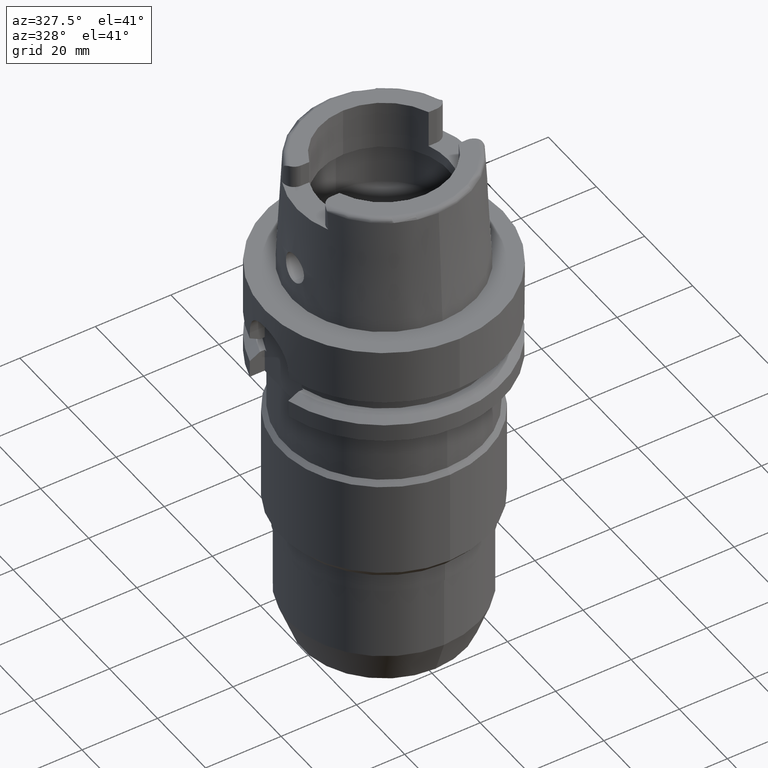
[diagram: clean part render]
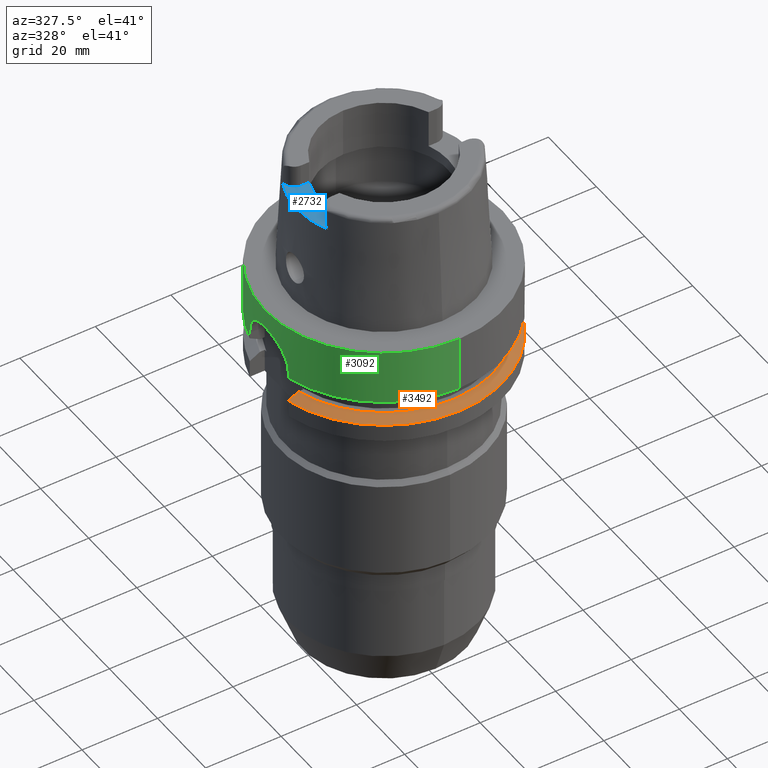
[diagram: same view with three faces highlighted in distinct colors, each labeled with its STEP entity id]
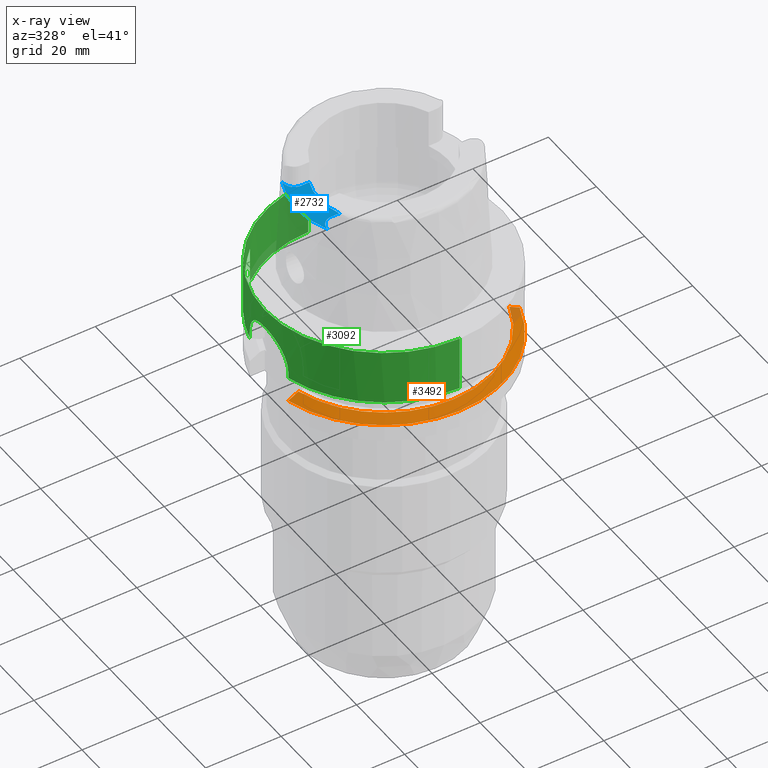
[diagram: x-ray of the same camera — body ghosted, the three highlighted faces saturated]
A machine part, auxiliary view with three faces highlighted in distinct colors.
The next image is the same camera in x-ray (body ghosted, the three faces saturated) — at least one of them is partly hidden behind the body in this view.
Their STEP definitions:

[orange] entity #3492 — the highlighted conical surface has half-angle 60 deg.
#1166=CARTESIAN_POINT('',(3.018691773962E1,-8.999999854524E0,
-2.137749790141E1));
#1167=CARTESIAN_POINT('',(2.988425156085E1,-8.999999854524E0,
-2.121003774786E1));
#1168=CARTESIAN_POINT('',(2.927875700457E1,-8.999999970882E0,
-2.087540607537E1));
#1169=CARTESIAN_POINT('',(2.836989125431E1,-9.000000320128E0,
-2.037459664159E1));
#1170=CARTESIAN_POINT('',(2.776361428914E1,-8.999999272447E0,
-2.004137408700E1));
#1171=CARTESIAN_POINT('',(2.746036354001E1,-8.999999272447E0,-1.9875E1));
#1204=CARTESIAN_POINT('',(-2.776816319676E1,-8.000000146436E0,-1.9875E1));
#1205=CARTESIAN_POINT('',(-2.806829964999E1,-8.000000146436E0,
-2.004151125758E1));
#1206=CARTESIAN_POINT('',(-2.866838177582E1,-7.999999994968E0,
-2.037486182336E1));
#1207=CARTESIAN_POINT('',(-2.956806989478E1,-7.999999797959E0,
-2.087567804800E1));
#1208=CARTESIAN_POINT('',(-3.016752195719E1,-8.000000474785E0,
-2.121015964334E1));
#1209=CARTESIAN_POINT('',(-3.046719534850E1,-8.000000474785E0,
-2.137750338496E1));
#1244=CARTESIAN_POINT('',(0.E0,0.E0,-1.9875E1));
#1245=DIRECTION('',(0.E0,0.E0,-1.E0));
#1246=DIRECTION('',(9.502643111725E-1,-3.114446000686E-1,0.E0));
#1247=AXIS2_PLACEMENT_3D('',#1244,#1245,#1246);
#1252=CARTESIAN_POINT('',(0.E0,0.E0,-1.9875E1));
#1253=DIRECTION('',(0.E0,0.E0,-1.E0));
#1254=DIRECTION('',(0.E0,-1.E0,0.E0));
#1255=AXIS2_PLACEMENT_3D('',#1252,#1253,#1254);
#1274=CARTESIAN_POINT('',(0.E0,0.E0,-2.137749907476E1));
#1275=DIRECTION('',(0.E0,0.E0,-1.E0));
#1276=DIRECTION('',(9.583148474999E-1,-2.857142857143E-1,0.E0));
#1277=AXIS2_PLACEMENT_3D('',#1274,#1275,#1276);
#1282=CARTESIAN_POINT('',(0.E0,0.E0,-2.137749907476E1));
#1283=DIRECTION('',(0.E0,0.E0,-1.E0));
#1284=DIRECTION('',(0.E0,-1.E0,0.E0));
#1285=AXIS2_PLACEMENT_3D('',#1282,#1283,#1284);
#2566=CARTESIAN_POINT('',(-3.046719534850E1,-8.000000474785E0,
-2.137750338496E1));
#2567=VERTEX_POINT('',#2566);
#2568=CARTESIAN_POINT('',(3.018691769625E1,-9.E0,-2.137749907476E1));
#2569=CARTESIAN_POINT('',(0.E0,-3.15E1,-2.137749907476E1));
#2570=VERTEX_POINT('',#2568);
#2571=VERTEX_POINT('',#2569);
#2582=CARTESIAN_POINT('',(-2.776816319676E1,-8.000000146436E0,-1.9875E1));
#2583=VERTEX_POINT('',#2582);
#2616=CARTESIAN_POINT('',(-1.071896190413E-14,-2.889759526419E1,-1.9875E1));
#2617=VERTEX_POINT('',#2616);
#2618=CARTESIAN_POINT('',(2.746035345827E1,-9.E0,-1.9875E1));
#2619=VERTEX_POINT('',#2618);
#3479=CARTESIAN_POINT('',(0.E0,0.E0,-2.062624953738E1));
#3480=DIRECTION('',(0.E0,0.E0,-1.E0));
#3481=DIRECTION('',(0.E0,-1.E0,0.E0));
#3482=AXIS2_PLACEMENT_3D('',#3479,#3480,#3481);
#3483=CONICAL_SURFACE('',#3482,3.019879763210E1,6.E1);
#3484=ORIENTED_EDGE('',*,*,#3439,.F.);
#3485=ORIENTED_EDGE('',*,*,#3459,.F.);
#3486=ORIENTED_EDGE('',*,*,#3457,.F.);
#3487=ORIENTED_EDGE('',*,*,#3405,.F.);
#3488=ORIENTED_EDGE('',*,*,#3422,.T.);
#3489=ORIENTED_EDGE('',*,*,#3420,.T.);
#3490=EDGE_LOOP('',(#3484,#3485,#3486,#3487,#3488,#3489));
#3491=FACE_OUTER_BOUND('',#3490,.F.);
#1172=B_SPLINE_CURVE_WITH_KNOTS('',3,(#1166,#1167,#1168,#1169,#1170,#1171),
.UNSPECIFIED.,.F.,.F.,(4,1,1,4),(0.E0,3.333333333333E-1,6.666666666667E-1,1.E0),
.UNSPECIFIED.);
#1210=B_SPLINE_CURVE_WITH_KNOTS('',3,(#1204,#1205,#1206,#1207,#1208,#1209),
.UNSPECIFIED.,.F.,.F.,(4,1,1,4),(0.E0,3.333333333333E-1,6.666666666667E-1,1.E0),
.UNSPECIFIED.);
#1248=CIRCLE('',#1247,2.889759526419E1);
#1256=CIRCLE('',#1255,2.889759526419E1);
#1278=CIRCLE('',#1277,3.15E1);
#1286=CIRCLE('',#1285,3.15E1);
#3405=EDGE_CURVE('',#2570,#2619,#1172,.T.);
#3420=EDGE_CURVE('',#2571,#2567,#1286,.T.);
#3422=EDGE_CURVE('',#2570,#2571,#1278,.T.);
#3439=EDGE_CURVE('',#2583,#2567,#1210,.T.);
#3457=EDGE_CURVE('',#2619,#2617,#1248,.T.);
#3459=EDGE_CURVE('',#2617,#2583,#1256,.T.);
#3492=ADVANCED_FACE('',(#3491),#3483,.T.);

[blue] entity #2732 — the highlighted planar face has unit normal (0, 0, 1).
#39=CARTESIAN_POINT('',(0.E0,0.E0,2.6E1));
#40=DIRECTION('',(0.E0,0.E0,1.E0));
#41=DIRECTION('',(-9.294994374136E-1,3.688235294118E-1,0.E0));
#42=AXIS2_PLACEMENT_3D('',#39,#40,#41);
#47=DIRECTION('',(-1.E0,8.644330667353E-14,0.E0));
#48=VECTOR('',#47,2.188509563969E0);
#49=CARTESIAN_POINT('',(-1.580149043603E1,-6.27E0,2.6E1));
#50=LINE('',#49,#48);
#54=CARTESIAN_POINT('',(-1.799E1,-9.15E0,2.6E1));
#55=DIRECTION('',(0.E0,0.E0,1.E0));
#56=DIRECTION('',(0.E0,1.E0,0.E0));
#57=AXIS2_PLACEMENT_3D('',#54,#55,#56);
#62=DIRECTION('',(1.239819362355E-6,-9.999999999992E-1,-3.860130687331E-14));
#63=VECTOR('',#62,5.522165905616E-1);
#64=CARTESIAN_POINT('',(-2.087E1,-9.15E0,2.6E1));
#65=LINE('',#64,#63);
#69=CARTESIAN_POINT('',(0.E0,0.E0,2.6E1));
#70=DIRECTION('',(0.E0,0.E0,-1.E0));
#71=DIRECTION('',(-9.068002397791E-1,-4.215605829967E-1,0.E0));
#72=AXIS2_PLACEMENT_3D('',#69,#70,#71);
#77=DIRECTION('',(5.336846542901E-6,-9.999999999858E-1,3.860251871644E-14));
#78=VECTOR('',#77,5.521992549084E-1);
#79=CARTESIAN_POINT('',(-2.087000294700E1,9.702199254901E0,2.6E1));
#80=LINE('',#79,#78);
#84=CARTESIAN_POINT('',(-1.799E1,9.15E0,2.6E1));
#85=DIRECTION('',(0.E0,0.E0,1.E0));
#86=DIRECTION('',(-1.E0,0.E0,0.E0));
#87=AXIS2_PLACEMENT_3D('',#84,#85,#86);
#92=DIRECTION('',(1.E0,8.644330667353E-14,0.E0));
#93=VECTOR('',#92,2.188509563969E0);
#94=CARTESIAN_POINT('',(-1.799E1,6.27E0,2.6E1));
#95=LINE('',#94,#93);
#2343=CARTESIAN_POINT('',(-1.580149043603E1,6.27E0,2.6E1));
#2344=CARTESIAN_POINT('',(-1.580149043603E1,-6.27E0,2.6E1));
#2345=VERTEX_POINT('',#2343);
#2346=VERTEX_POINT('',#2344);
#2359=CARTESIAN_POINT('',(-1.799E1,-6.27E0,2.6E1));
#2360=VERTEX_POINT('',#2359);
#2361=CARTESIAN_POINT('',(-2.087E1,-9.15E0,2.6E1));
#2362=VERTEX_POINT('',#2361);
#2363=CARTESIAN_POINT('',(-2.086999931535E1,-9.702216590561E0,2.6E1));
#2364=VERTEX_POINT('',#2363);
#2365=CARTESIAN_POINT('',(-2.087E1,9.702213322399E0,2.6E1));
#2366=VERTEX_POINT('',#2365);
#2367=CARTESIAN_POINT('',(-2.087E1,9.15E0,2.6E1));
#2368=VERTEX_POINT('',#2367);
#2369=CARTESIAN_POINT('',(-1.799E1,6.27E0,2.6E1));
#2370=VERTEX_POINT('',#2369);
#2710=CARTESIAN_POINT('',(0.E0,0.E0,2.6E1));
#2711=DIRECTION('',(0.E0,0.E0,1.E0));
#2712=DIRECTION('',(0.E0,1.E0,0.E0));
#2713=AXIS2_PLACEMENT_3D('',#2710,#2711,#2712);
#2714=PLANE('',#2713);
#2715=ORIENTED_EDGE('',*,*,#2691,.T.);
#2717=ORIENTED_EDGE('',*,*,#2716,.T.);
#2719=ORIENTED_EDGE('',*,*,#2718,.T.);
#2721=ORIENTED_EDGE('',*,*,#2720,.T.);
#2723=ORIENTED_EDGE('',*,*,#2722,.T.);
#2725=ORIENTED_EDGE('',*,*,#2724,.T.);
#2727=ORIENTED_EDGE('',*,*,#2726,.T.);
#2729=ORIENTED_EDGE('',*,*,#2728,.T.);
#2730=EDGE_LOOP('',(#2715,#2717,#2719,#2721,#2723,#2725,#2727,#2729));
#2731=FACE_OUTER_BOUND('',#2730,.F.);
#43=CIRCLE('',#42,1.7E1);
#58=CIRCLE('',#57,2.88E0);
#73=CIRCLE('',#72,2.301499170874E1);
#88=CIRCLE('',#87,2.88E0);
#2691=EDGE_CURVE('',#2345,#2346,#43,.T.);
#2716=EDGE_CURVE('',#2346,#2360,#50,.T.);
#2718=EDGE_CURVE('',#2360,#2362,#58,.T.);
#2720=EDGE_CURVE('',#2362,#2364,#65,.T.);
#2722=EDGE_CURVE('',#2364,#2366,#73,.T.);
#2724=EDGE_CURVE('',#2366,#2368,#80,.T.);
#2726=EDGE_CURVE('',#2368,#2370,#88,.T.);
#2728=EDGE_CURVE('',#2370,#2345,#95,.T.);
#2732=ADVANCED_FACE('',(#2731),#2714,.T.);

[green] entity #3092 — the highlighted cylindrical surface (partial cylindrical patch) has radius 31.5 mm, axis along (0, 0, 1).
#618=CARTESIAN_POINT('',(0.E0,0.E0,-1.136868377216E-13));
#619=DIRECTION('',(0.E0,0.E0,-1.E0));
#620=DIRECTION('',(0.E0,-1.E0,0.E0));
#621=AXIS2_PLACEMENT_3D('',#618,#619,#620);
#650=DIRECTION('',(-1.431540360012E-6,-1.176472697882E-6,-9.999999999983E-1));
#651=VECTOR('',#650,9.622451541726E0);
#652=CARTESIAN_POINT('',(-2.E1,2.433618704728E1,-5.000000000001E0));
#653=LINE('',#652,#651);
#657=DIRECTION('',(0.E0,-2.672583210397E-14,-1.E0));
#658=VECTOR('',#657,1.462250092524E1);
#659=CARTESIAN_POINT('',(0.E0,-3.15E1,-8.526512829121E-14));
#660=LINE('',#659,#658);
#664=DIRECTION('',(-7.683484025144E-8,2.926220228417E-7,1.E0));
#665=VECTOR('',#664,1.622496615257E0);
#666=CARTESIAN_POINT('',(-3.046719534850E1,-8.000000474779E0,
-1.462249661526E1));
#667=LINE('',#666,#665);
#671=DIRECTION('',(-1.617510939571E-8,-6.159700062494E-8,-1.E0));
#672=VECTOR('',#671,1.622501832489E0);
#673=CARTESIAN_POINT('',(-3.046719547316E1,8.E0,-1.3E1));
#674=LINE('',#673,#672);
#678=DIRECTION('',(9.894060569839E-7,1.203919407604E-6,9.999999999988E-1));
#679=VECTOR('',#678,2.510797856236E0);
#680=CARTESIAN_POINT('',(-2.433618953148E1,1.999999697720E1,-1.462251175989E1));
#681=LINE('',#680,#679);
#685=CARTESIAN_POINT('',(-2.433618704728E1,2.E1,-1.211171390366E1));
#686=CARTESIAN_POINT('',(-2.433618704728E1,2.E1,-1.187968874011E1));
#687=CARTESIAN_POINT('',(-2.431969604555E1,2.002009231787E1,-1.141726705020E1));
#688=CARTESIAN_POINT('',(-2.424498436766E1,2.011065669890E1,-1.072602599616E1));
#689=CARTESIAN_POINT('',(-2.411963920346E1,2.026107771917E1,-1.004465961658E1));
#690=CARTESIAN_POINT('',(-2.394086931729E1,2.047236625625E1,-9.373047295153E0));
#691=CARTESIAN_POINT('',(-2.370737591500E1,2.074278700113E1,-8.720381936927E0));
#692=CARTESIAN_POINT('',(-2.341372931509E1,2.107427987047E1,-8.085982045772E0));
#693=CARTESIAN_POINT('',(-2.305679183110E1,2.146495732049E1,-7.478112393127E0));
#694=CARTESIAN_POINT('',(-2.262785438295E1,2.191755940754E1,-6.897616522368E0));
#695=CARTESIAN_POINT('',(-2.212223167450E1,2.242887389443E1,-6.353938285193E0));
#696=CARTESIAN_POINT('',(-2.152719355475E1,2.300191815633E1,-5.849306152118E0));
#697=CARTESIAN_POINT('',(-2.083176868548E1,2.363517476296E1,-5.391822024117E0));
#698=CARTESIAN_POINT('',(-2.029101495522E1,2.409702472111E1,-5.123211653379E0));
#699=CARTESIAN_POINT('',(-2.E1,2.433618704728E1,-5.000000000001E0));
#716=CARTESIAN_POINT('',(-2.000001377493E1,2.433617572673E1,-1.462245154171E1));
#797=CARTESIAN_POINT('',(-2.433618953148E1,1.999999697720E1,-1.462251175989E1));
#814=CARTESIAN_POINT('',(0.E0,0.E0,-1.462250092524E1));
#815=DIRECTION('',(0.E0,0.E0,1.E0));
#816=DIRECTION('',(-7.725773665802E-1,6.349206349206E-1,0.E0));
#817=AXIS2_PLACEMENT_3D('',#814,#815,#816);
#822=CARTESIAN_POINT('',(-3.046719549941E1,7.999999900059E0,-1.462250183249E1));
#846=CARTESIAN_POINT('',(-3.046719547316E1,8.E0,-1.3E1));
#847=CARTESIAN_POINT('',(-3.046719547316E1,8.E0,-1.245224509999E1));
#848=CARTESIAN_POINT('',(-3.049727137227E1,7.887060874630E0,-1.135075118721E1));
#849=CARTESIAN_POINT('',(-3.062689720231E1,7.375464569151E0,-9.752107553193E0));
#850=CARTESIAN_POINT('',(-3.082074251681E1,6.532777374907E0,-8.278882378004E0));
#851=CARTESIAN_POINT('',(-3.104430609965E1,5.390243462835E0,-7.006972521279E0));
#852=CARTESIAN_POINT('',(-3.125563107346E1,4.008878991666E0,-6.008200801679E0));
#853=CARTESIAN_POINT('',(-3.141705588613E1,2.464785424921E0,-5.328002777601E0));
#854=CARTESIAN_POINT('',(-3.150356836884E1,8.304300113720E-1,
-4.985635869720E0));
#855=CARTESIAN_POINT('',(-3.150352751587E1,-8.321578987529E-1,
-4.985821287041E0));
#856=CARTESIAN_POINT('',(-3.141693215150E1,-2.466333896818E0,
-5.328504821696E0));
#857=CARTESIAN_POINT('',(-3.125544458246E1,-4.010323940503E0,
-6.009021264075E0));
#858=CARTESIAN_POINT('',(-3.104408433280E1,-5.391516988483E0,
-7.008125926054E0));
#859=CARTESIAN_POINT('',(-3.082053721399E1,-6.533717581874E0,
-8.280178135424E0));
#860=CARTESIAN_POINT('',(-3.062672381467E1,-7.376195454718E0,
-9.753746043465E0));
#861=CARTESIAN_POINT('',(-3.049718991841E1,-7.887318744115E0,
-1.135225387602E1));
#862=CARTESIAN_POINT('',(-3.046719547316E1,-8.E0,-1.245284675288E1));
#863=CARTESIAN_POINT('',(-3.046719547316E1,-8.E0,-1.3E1));
#1307=CARTESIAN_POINT('',(0.E0,0.E0,-1.462250092524E1));
#1308=DIRECTION('',(0.E0,0.E0,1.E0));
#1309=DIRECTION('',(-9.672125547036E-1,-2.539682539683E-1,0.E0));
#1310=AXIS2_PLACEMENT_3D('',#1307,#1308,#1309);
#1377=DIRECTION('',(0.E0,2.672583210397E-14,-1.E0));
#1378=VECTOR('',#1377,1.462250092524E1);
#1379=CARTESIAN_POINT('',(0.E0,3.15E1,-8.526512829121E-14));
#1380=LINE('',#1379,#1378);
#1438=CARTESIAN_POINT('',(0.E0,0.E0,-1.462250092524E1));
#1439=DIRECTION('',(0.E0,0.E0,1.E0));
#1440=DIRECTION('',(0.E0,1.E0,0.E0));
#1441=AXIS2_PLACEMENT_3D('',#1438,#1439,#1440);
#2561=VERTEX_POINT('',#716);
#2562=CARTESIAN_POINT('',(-2.E1,2.433618704728E1,-5.000000000001E0));
#2563=VERTEX_POINT('',#2562);
#2590=CARTESIAN_POINT('',(-3.046719547316E1,-8.E0,-1.3E1));
#2591=VERTEX_POINT('',#2590);
#2592=CARTESIAN_POINT('',(-3.046719534850E1,-8.000000474779E0,
-1.462249661526E1));
#2593=VERTEX_POINT('',#2592);
#2613=VERTEX_POINT('',#822);
#2614=CARTESIAN_POINT('',(-3.046719547316E1,8.E0,-1.3E1));
#2615=VERTEX_POINT('',#2614);
#2669=CARTESIAN_POINT('',(0.E0,-3.15E1,-1.462250092524E1));
#2670=VERTEX_POINT('',#2669);
#2672=CARTESIAN_POINT('',(0.E0,3.15E1,-1.462250092524E1));
#2673=VERTEX_POINT('',#2672);
#2674=VERTEX_POINT('',#797);
#2675=CARTESIAN_POINT('',(0.E0,3.15E1,-8.526512829121E-14));
#2676=VERTEX_POINT('',#2675);
#2677=CARTESIAN_POINT('',(0.E0,-3.15E1,-1.136868377216E-13));
#2678=VERTEX_POINT('',#2677);
#2679=CARTESIAN_POINT('',(-2.433618704728E1,2.E1,-1.211171390366E1));
#2680=VERTEX_POINT('',#2679);
#3062=CARTESIAN_POINT('',(0.E0,0.E0,-1.1185E2));
#3063=DIRECTION('',(0.E0,0.E0,1.E0));
#3064=DIRECTION('',(0.E0,1.E0,0.E0));
#3065=AXIS2_PLACEMENT_3D('',#3062,#3063,#3064);
#3066=CYLINDRICAL_SURFACE('',#3065,3.15E1);
#3068=ORIENTED_EDGE('',*,*,#3067,.T.);
#3070=ORIENTED_EDGE('',*,*,#3069,.F.);
#3072=ORIENTED_EDGE('',*,*,#3071,.F.);
#3073=ORIENTED_EDGE('',*,*,#3051,.F.);
#3075=ORIENTED_EDGE('',*,*,#3074,.T.);
#3077=ORIENTED_EDGE('',*,*,#3076,.F.);
#3079=ORIENTED_EDGE('',*,*,#3078,.T.);
#3081=ORIENTED_EDGE('',*,*,#3080,.F.);
#3083=ORIENTED_EDGE('',*,*,#3082,.T.);
#3085=ORIENTED_EDGE('',*,*,#3084,.F.);
#3087=ORIENTED_EDGE('',*,*,#3086,.T.);
#3089=ORIENTED_EDGE('',*,*,#3088,.T.);
#3090=EDGE_LOOP('',(#3068,#3070,#3072,#3073,#3075,#3077,#3079,#3081,#3083,#3085,
#3087,#3089));
#3091=FACE_OUTER_BOUND('',#3090,.F.);
#622=CIRCLE('',#621,3.15E1);
#700=B_SPLINE_CURVE_WITH_KNOTS('',3,(#685,#686,#687,#688,#689,#690,#691,#692,
#693,#694,#695,#696,#697,#698,#699),.UNSPECIFIED.,.F.,.F.,(4,1,1,1,1,1,1,1,1,1,
1,1,4),(0.E0,8.333333333333E-2,1.666666666667E-1,2.5E-1,3.333333333333E-1,
4.166666666667E-1,5.E-1,5.833333333333E-1,6.666666666667E-1,7.5E-1,
8.333333333333E-1,9.166666666667E-1,1.E0),.UNSPECIFIED.);
#818=CIRCLE('',#817,3.15E1);
#864=B_SPLINE_CURVE_WITH_KNOTS('',3,(#846,#847,#848,#849,#850,#851,#852,#853,
#854,#855,#856,#857,#858,#859,#860,#861,#862,#863),.UNSPECIFIED.,.F.,.F.,(4,1,1,
1,1,1,1,1,1,1,1,1,1,1,1,4),(0.E0,6.666666666667E-2,1.333333333333E-1,2.E-1,
2.666666666667E-1,3.333333333333E-1,4.E-1,4.666666666667E-1,5.333333333333E-1,
6.E-1,6.666666666667E-1,7.333333333333E-1,8.E-1,8.666666666667E-1,
9.333333333333E-1,1.E0),.UNSPECIFIED.);
#1311=CIRCLE('',#1310,3.15E1);
#1442=CIRCLE('',#1441,3.15E1);
#3051=EDGE_CURVE('',#2678,#2676,#622,.T.);
#3067=EDGE_CURVE('',#2563,#2561,#653,.T.);
#3069=EDGE_CURVE('',#2673,#2561,#1442,.T.);
#3071=EDGE_CURVE('',#2676,#2673,#1380,.T.);
#3074=EDGE_CURVE('',#2678,#2670,#660,.T.);
#3076=EDGE_CURVE('',#2593,#2670,#1311,.T.);
#3078=EDGE_CURVE('',#2593,#2591,#667,.T.);
#3080=EDGE_CURVE('',#2615,#2591,#864,.T.);
#3082=EDGE_CURVE('',#2615,#2613,#674,.T.);
#3084=EDGE_CURVE('',#2674,#2613,#818,.T.);
#3086=EDGE_CURVE('',#2674,#2680,#681,.T.);
#3088=EDGE_CURVE('',#2680,#2563,#700,.T.);
#3092=ADVANCED_FACE('',(#3091),#3066,.T.);